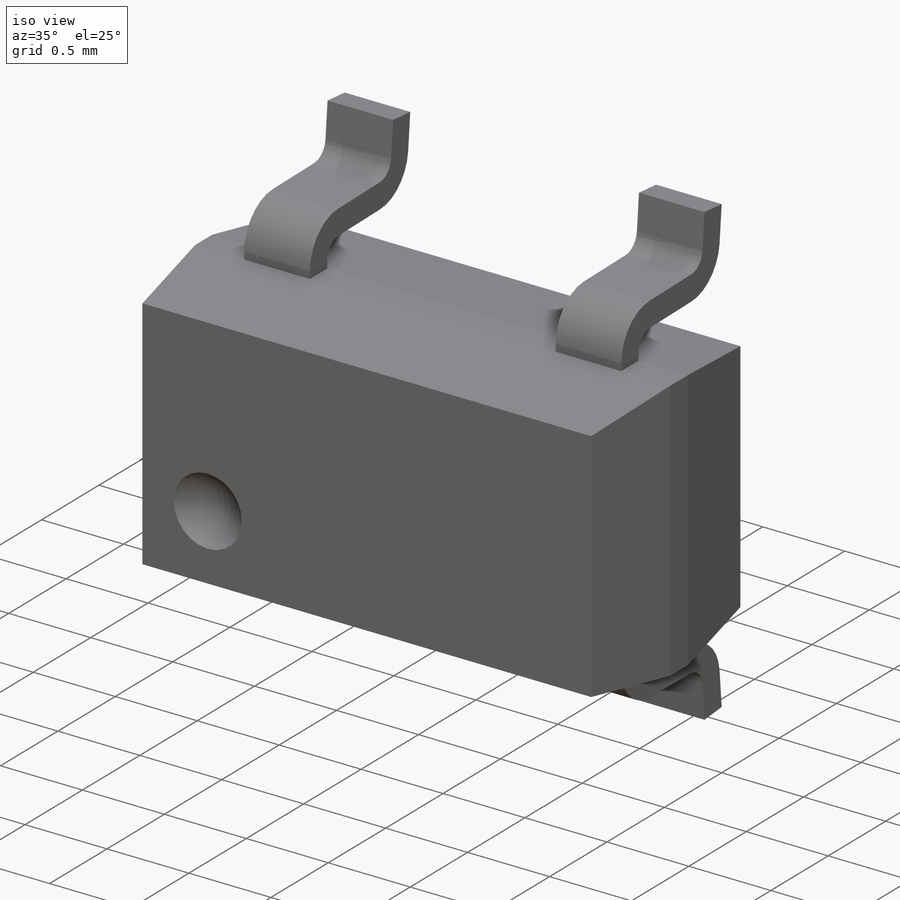
[diagram: iso view]
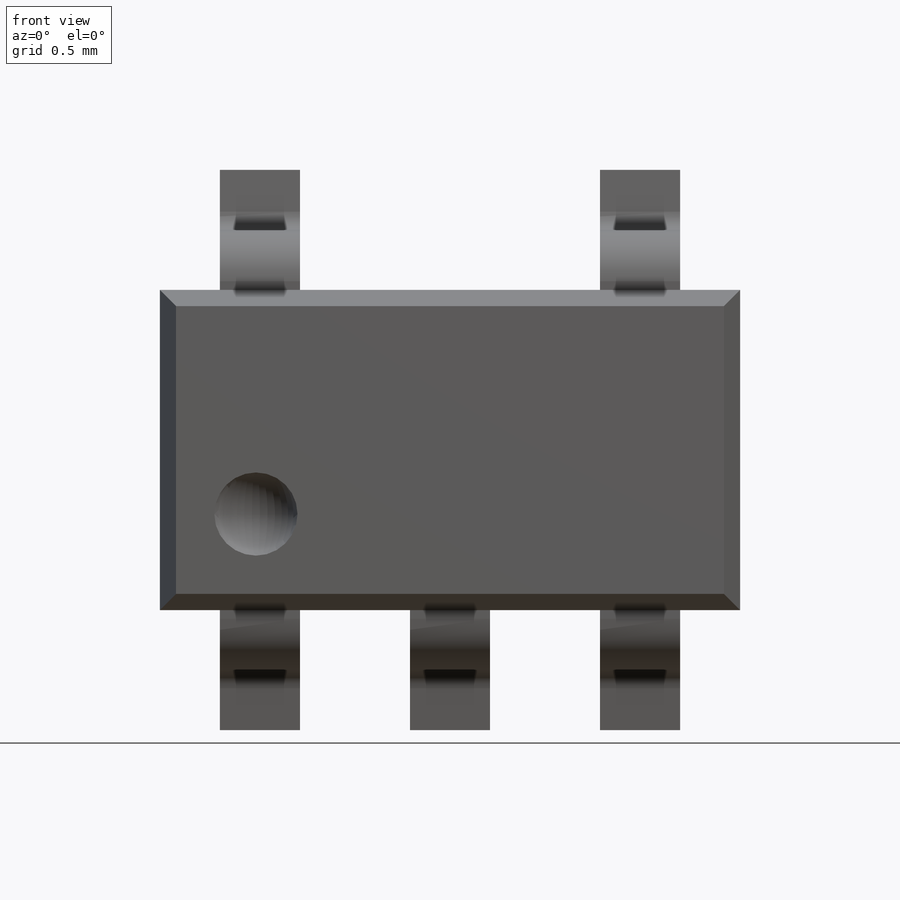
[diagram: front view]
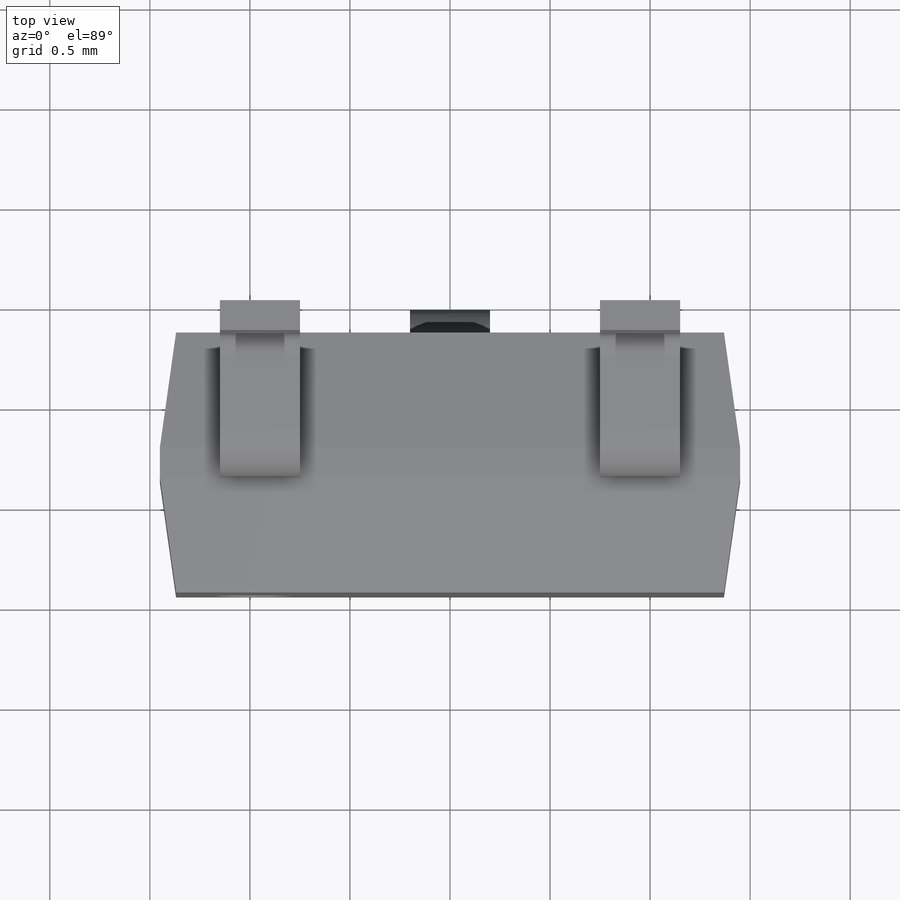
[diagram: top view]
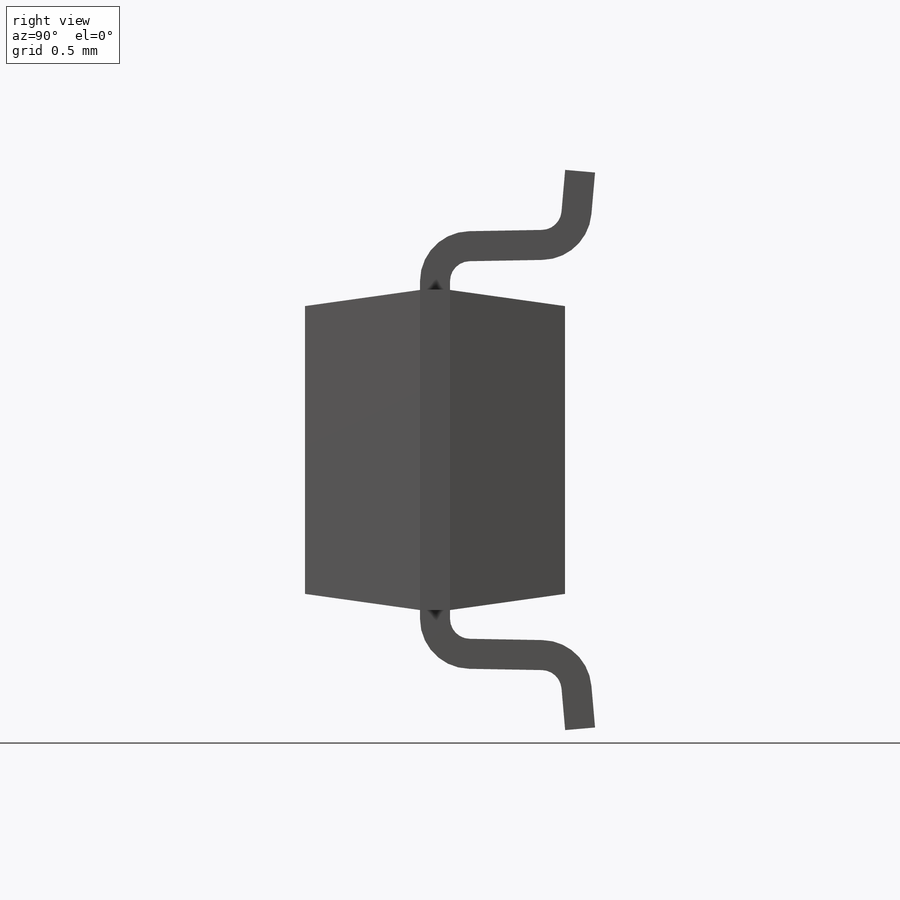
[diagram: right view]
SOLIDWORKS PART (.sldprt)
format: sldprt  version: not decoded by parser v0  size: 336,896 bytes
history: native  units: mm
features: chamfer x3, plane x2, extrude x2, material x1, sketch x1, pattern_linear x1, cut_revolve x1 (+13 scaffold rows collapsed)
feature tree (24):
  scaffold x13  (default folders/planes/origin — collapsed)
  material  "Material <not specified>"
  plane  "Pin1Plane"  Offset=1.15mm
  sketch  "BodyWxH"  dims[D1=1.1mm W=1.6mm SO=0.15mm HMax=1.45mm]
  extrude  "Boss-Body"  Depth=2.9mm
  chamfer  "Chamfer1"  Distance=0.575mm Angle=8deg
  chamfer  "LeadCross"  Distance=0.1mm Angle=5deg BendRadius=0.1mm LeadThickness=0.15mm ToeLength=0.45mm MidPlane=0.8mm LeadSpan=2.8mm
  extrude  "Pins"  Depth=0.4mm LeadWidth=0.4mm
  pattern_linear  "PatternLeads"  Count1=3 Count2=1 Spacing1=0.95mm Spacing2=0.1mm LeadPitch=0.95mm
  plane  "Pin1MarkPlane"  Offset=0.97mm
  chamfer  "Pin1Indent"  Distance=1.57mm CutHeight=1.57mm CutSize=0.48mm CutOffset=0.32mm
  cut_revolve  "Cut-Pin1Indent"  Angle=360deg
decode coverage: 8 of 8 modeling features carry decoded parameters
note: suppression state not decoded; provenance and decode notes live in map.json
